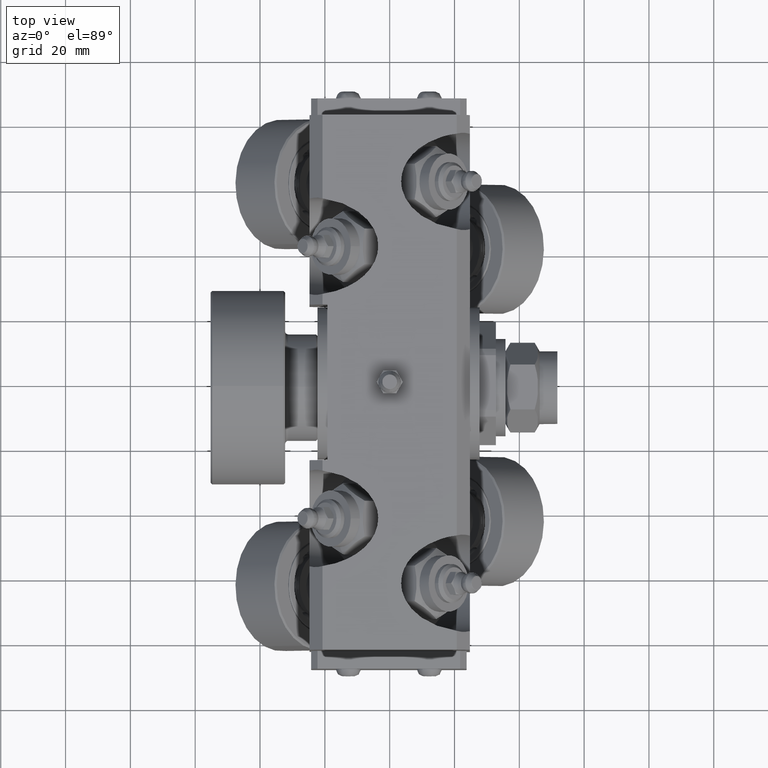
[diagram: clean part render]
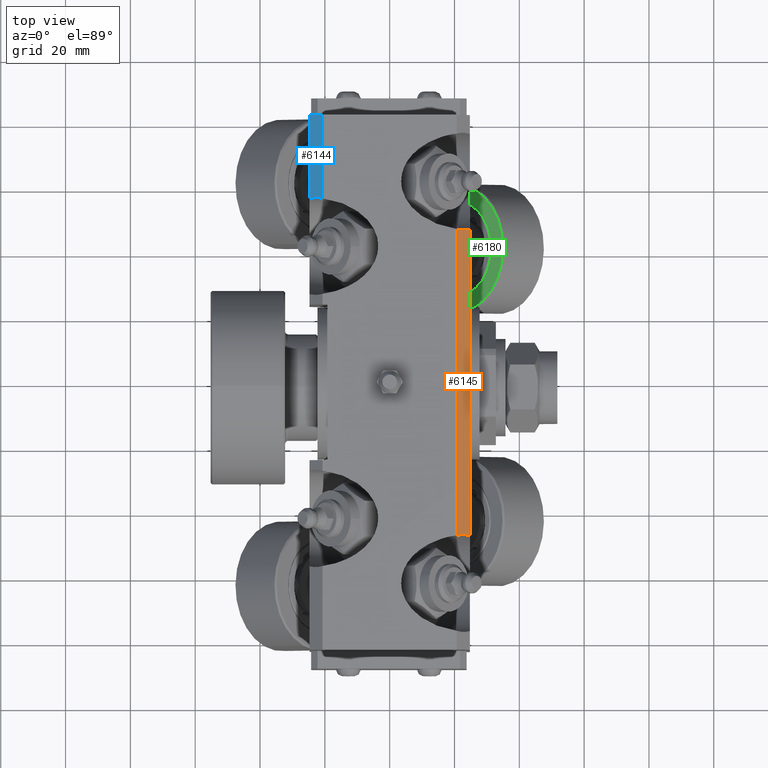
[diagram: same view with three faces highlighted in distinct colors, each labeled with its STEP entity id]
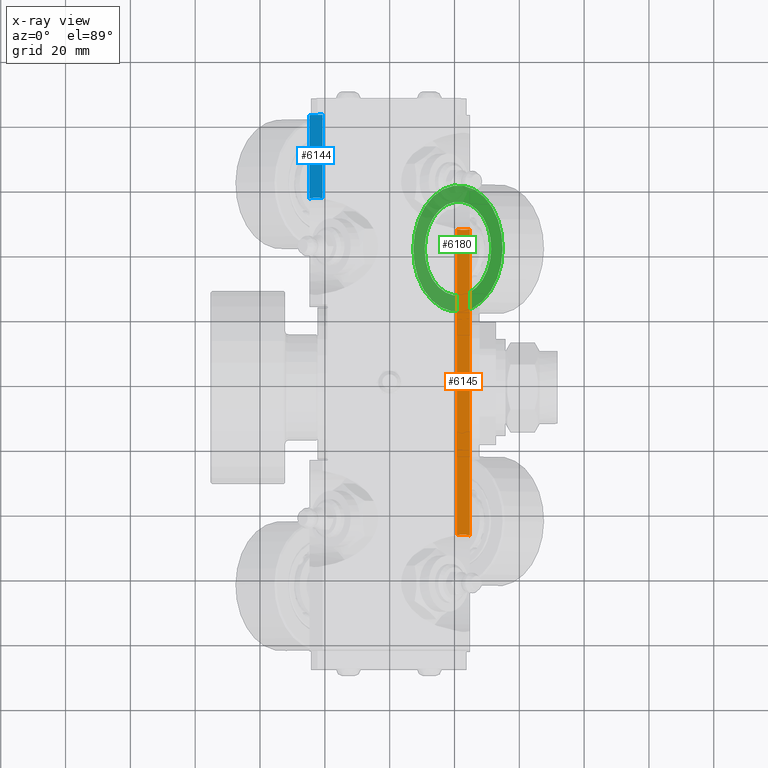
[diagram: x-ray of the same camera — body ghosted, the three highlighted faces saturated]
A machine part, top view with three faces highlighted in distinct colors.
The next image is the same camera in x-ray (body ghosted, the three faces saturated) — at least one of them is partly hidden behind the body in this view.
Their STEP definitions:

[orange] entity #6145 — the highlighted planar face has unit normal (0.7071, 0, 0.7071).
#523=PLANE('',#7000);
#712=FACE_OUTER_BOUND('',#1070,.T.);
#1070=EDGE_LOOP('',(#4546,#4547,#4548,#4549));
#1480=CIRCLE('',#6984,15.);
#1485=CIRCLE('',#6992,15.);
#1966=LINE('',#10575,#2335);
#1975=LINE('',#10612,#2344);
#2335=VECTOR('',#7953,10.);
#2344=VECTOR('',#7994,10.);
#2747=VERTEX_POINT('',#10572);
#2748=VERTEX_POINT('',#10574);
#2753=VERTEX_POINT('',#10587);
#2757=VERTEX_POINT('',#10598);
#3418=EDGE_CURVE('',#2748,#2747,#1966,.T.);
#3425=EDGE_CURVE('',#2747,#2753,#1480,.T.);
#3433=EDGE_CURVE('',#2757,#2748,#1485,.T.);
#3437=EDGE_CURVE('',#2753,#2757,#1975,.T.);
#4546=ORIENTED_EDGE('',*,*,#3425,.T.);
#4547=ORIENTED_EDGE('',*,*,#3437,.T.);
#4548=ORIENTED_EDGE('',*,*,#3433,.T.);
#4549=ORIENTED_EDGE('',*,*,#3418,.T.);
#6145=ADVANCED_FACE('',(#712),#523,.T.);
#6984=AXIS2_PLACEMENT_3D('',#10590,#7967,#7968);
#6992=AXIS2_PLACEMENT_3D('',#10604,#7985,#7986);
#7000=AXIS2_PLACEMENT_3D('',#10622,#8009,#8010);
#7953=DIRECTION('',(0.,-1.,0.));
#7967=DIRECTION('center_axis',(-0.707106781186548,0.,-0.707106781186547));
#7968=DIRECTION('ref_axis',(0.707106781186547,0.,-0.707106781186548));
#7985=DIRECTION('center_axis',(-0.707106781186548,0.,-0.707106781186547));
#7986=DIRECTION('ref_axis',(0.707106781186547,0.,-0.707106781186548));
#7994=DIRECTION('',(0.,1.,0.));
#8009=DIRECTION('center_axis',(0.707106781186548,0.,0.707106781186547));
#8010=DIRECTION('ref_axis',(0.707106781186547,0.,-0.707106781186548));
#10572=CARTESIAN_POINT('',(20.714,-47.2739906288228,24.75));
#10574=CARTESIAN_POINT('',(20.714,47.2739906288227,24.75));
#10575=CARTESIAN_POINT('',(20.714,0.,24.75));
#10587=CARTESIAN_POINT('',(24.75,-47.2739906288228,20.714));
#10590=CARTESIAN_POINT('Origin',(22.732,-62.,22.732));
#10598=CARTESIAN_POINT('',(24.75,47.2739906288228,20.714));
#10604=CARTESIAN_POINT('Origin',(22.732,62.,22.732));
#10612=CARTESIAN_POINT('',(24.75,0.,20.714));
#10622=CARTESIAN_POINT('Origin',(22.732,0.,22.732));

[blue] entity #6144 — the highlighted planar face has unit normal (-0.7071, 0, 0.7071).
#522=PLANE('',#6999);
#711=FACE_OUTER_BOUND('',#1069,.T.);
#1069=EDGE_LOOP('',(#4542,#4543,#4544,#4545));
#1475=CIRCLE('',#6965,15.);
#1924=LINE('',#9905,#2293);
#1969=LINE('',#10584,#2338);
#1979=LINE('',#10621,#2348);
#2293=VECTOR('',#7711,10.);
#2338=VECTOR('',#7960,10.);
#2348=VECTOR('',#8008,10.);
#2684=VERTEX_POINT('',#9902);
#2685=VERTEX_POINT('',#9904);
#2740=VERTEX_POINT('',#10546);
#2752=VERTEX_POINT('',#10582);
#3307=EDGE_CURVE('',#2685,#2684,#1924,.T.);
#3404=EDGE_CURVE('',#2684,#2740,#1475,.T.);
#3423=EDGE_CURVE('',#2740,#2752,#1969,.T.);
#3441=EDGE_CURVE('',#2752,#2685,#1979,.T.);
#4542=ORIENTED_EDGE('',*,*,#3404,.T.);
#4543=ORIENTED_EDGE('',*,*,#3423,.T.);
#4544=ORIENTED_EDGE('',*,*,#3441,.T.);
#4545=ORIENTED_EDGE('',*,*,#3307,.T.);
#6144=ADVANCED_FACE('',(#711),#522,.T.);
#6965=AXIS2_PLACEMENT_3D('',#10548,#7920,#7921);
#6999=AXIS2_PLACEMENT_3D('',#10620,#8006,#8007);
#7711=DIRECTION('',(0.,-1.,0.));
#7920=DIRECTION('center_axis',(0.707106781186548,0.,-0.707106781186548));
#7921=DIRECTION('ref_axis',(0.707106781186547,0.,0.707106781186547));
#7960=DIRECTION('',(0.,1.,0.));
#8006=DIRECTION('center_axis',(-0.707106781186548,0.,0.707106781186548));
#8007=DIRECTION('ref_axis',(0.707106781186548,0.,0.707106781186548));
#8008=DIRECTION('',(-0.707106781186548,0.,-0.707106781186548));
#9902=CARTESIAN_POINT('',(-24.75,56.7260093711772,20.714));
#9904=CARTESIAN_POINT('',(-24.75,82.5,20.714));
#9905=CARTESIAN_POINT('',(-24.75,0.,20.714));
#10546=CARTESIAN_POINT('',(-20.714,56.7260093711772,24.75));
#10548=CARTESIAN_POINT('Origin',(-22.732,42.,22.732));
#10582=CARTESIAN_POINT('',(-20.714,82.5,24.75));
#10584=CARTESIAN_POINT('',(-20.714,0.,24.75));
#10620=CARTESIAN_POINT('Origin',(-22.732,0.,22.732));
#10621=CARTESIAN_POINT('',(-22.732,82.5,22.732));

[green] entity #6180 — the highlighted planar face has unit normal (-0.7071, 0, 0.7071).
#416=FACE_BOUND('',#1114,.T.);
#537=PLANE('',#7075);
#747=FACE_OUTER_BOUND('',#1113,.T.);
#1113=EDGE_LOOP('',(#4703));
#1114=EDGE_LOOP('',(#4704));
#1519=CIRCLE('',#7074,14.5);
#1520=CIRCLE('',#7076,19.5);
#2807=VERTEX_POINT('',#10836);
#2808=VERTEX_POINT('',#10840);
#3515=EDGE_CURVE('',#2807,#2807,#1519,.T.);
#3516=EDGE_CURVE('',#2808,#2808,#1520,.T.);
#4703=ORIENTED_EDGE('',*,*,#3516,.F.);
#4704=ORIENTED_EDGE('',*,*,#3515,.F.);
#6180=ADVANCED_FACE('',(#747,#416),#537,.T.);
#7074=AXIS2_PLACEMENT_3D('',#10838,#8184,#8185);
#7075=AXIS2_PLACEMENT_3D('',#10839,#8186,#8187);
#7076=AXIS2_PLACEMENT_3D('',#10841,#8188,#8189);
#8184=DIRECTION('center_axis',(-1.,0.,0.));
#8185=DIRECTION('ref_axis',(0.,0.,-1.));
#8186=DIRECTION('center_axis',(-1.,0.,0.));
#8187=DIRECTION('ref_axis',(0.,0.,1.));
#8188=DIRECTION('center_axis',(1.,0.,0.));
#8189=DIRECTION('ref_axis',(0.,0.,-1.));
#10836=CARTESIAN_POINT('',(-9.,1.77573785876366E-15,14.5));
#10838=CARTESIAN_POINT('Origin',(-9.,0.,0.));
#10839=CARTESIAN_POINT('Origin',(-9.,0.,14.));
#10840=CARTESIAN_POINT('',(-9.,-2.38806125833734E-15,19.5));
#10841=CARTESIAN_POINT('Origin',(-9.,0.,0.));